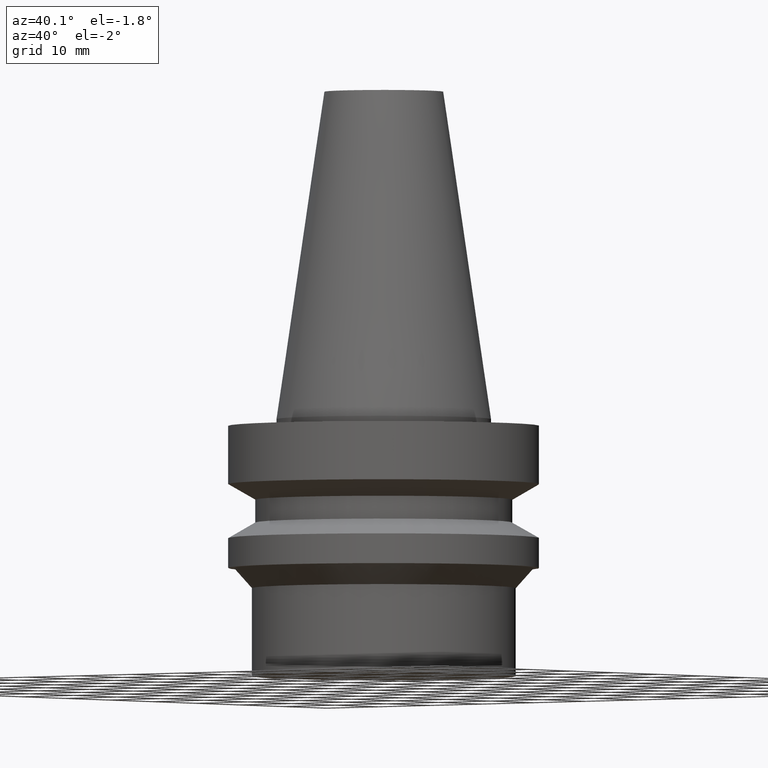
[diagram: clean part render]
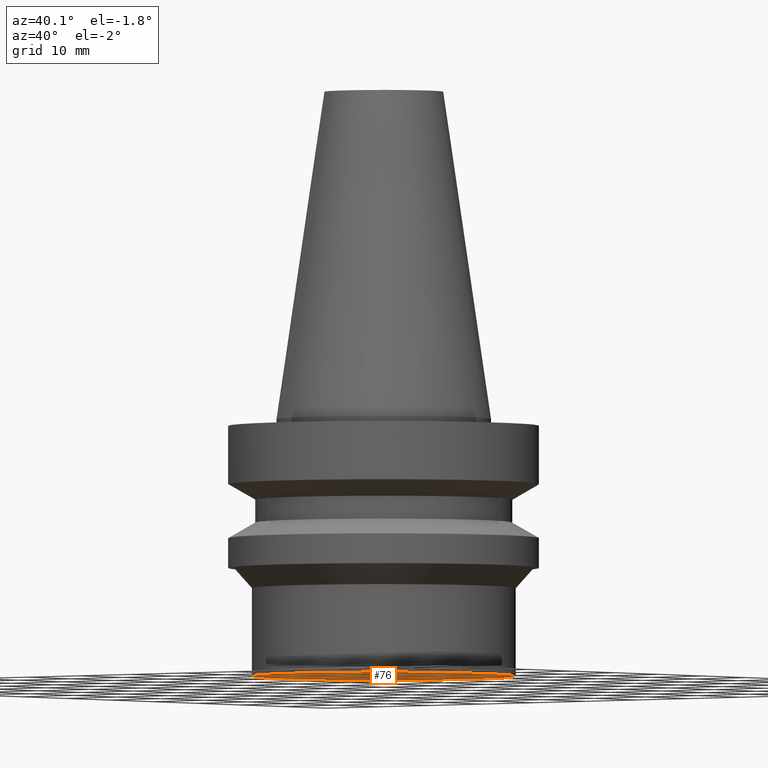
[diagram: same view with one face highlighted and labeled with its STEP entity id]
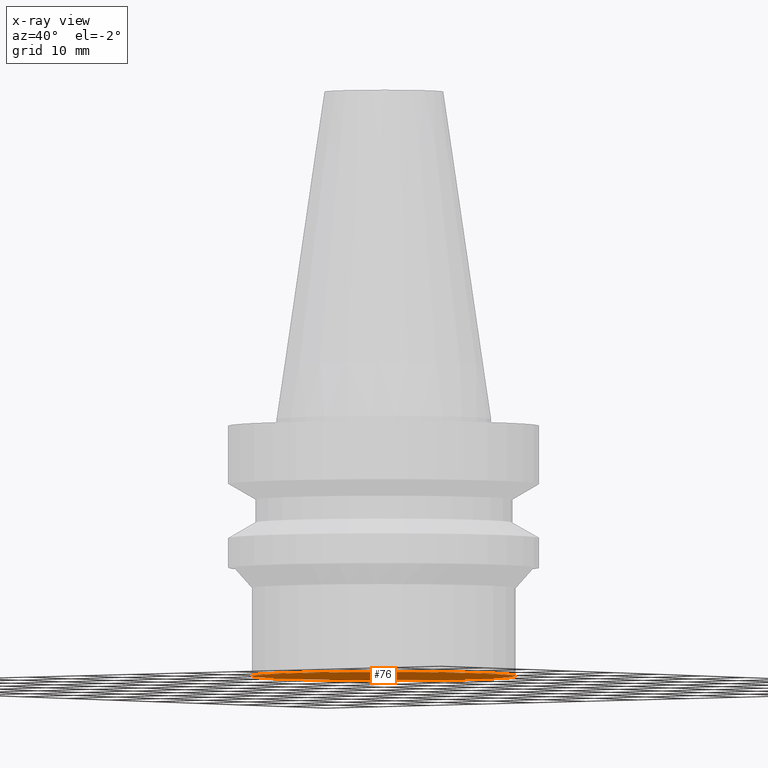
[diagram: x-ray of the same camera — body ghosted, the highlighted face saturated]
A machine part, auxiliary view. The second image highlights one B-rep face of the part: STEP entity #76.
The next image is the same camera in x-ray: the body ghosted, the highlighted face saturated — about 0% of this face is hidden behind the body in this view.
In plain terms, the highlighted planar face has unit normal (0, -0, -1).
Its self-contained STEP definition (entity closure, byte-faithful):
#76=ADVANCED_FACE('',(#91),#92,.T.);
#91=FACE_OUTER_BOUND('',#128,.T.);
#92=PLANE('',#129);
#128=EDGE_LOOP('',(#167));
#129=AXIS2_PLACEMENT_3D('',#168,#169,#170);
#167=ORIENTED_EDGE('',*,*,#227,.F.);
#168=CARTESIAN_POINT('',(2.32682140086628E-015,9.74999999999999,-37.9998772296846));
#169=DIRECTION('',(6.12323399573677E-017,-2.4191621021865E-016,-1.0));
#170=DIRECTION('',(-9.98594289453737E-033,-1.0,2.4191621021865E-016));
#227=EDGE_CURVE('',#240,#240,#241,.T.);
#240=VERTEX_POINT('',#264);
#241=CIRCLE('',#265,19.5);
#264=CARTESIAN_POINT('',(2.32682140086628E-015,19.5,-37.9998772296846));
#265=AXIS2_PLACEMENT_3D('',#289,#290,#291);
#289=CARTESIAN_POINT('',(2.32682140086628E-015,4.65364280173256E-015,-37.9998772296846));
#290=DIRECTION('',(-6.12323399573677E-017,-1.22464679914735E-016,1.0));
#291=DIRECTION('',(-1.23259516440783E-032,1.0,1.22464679914735E-016));